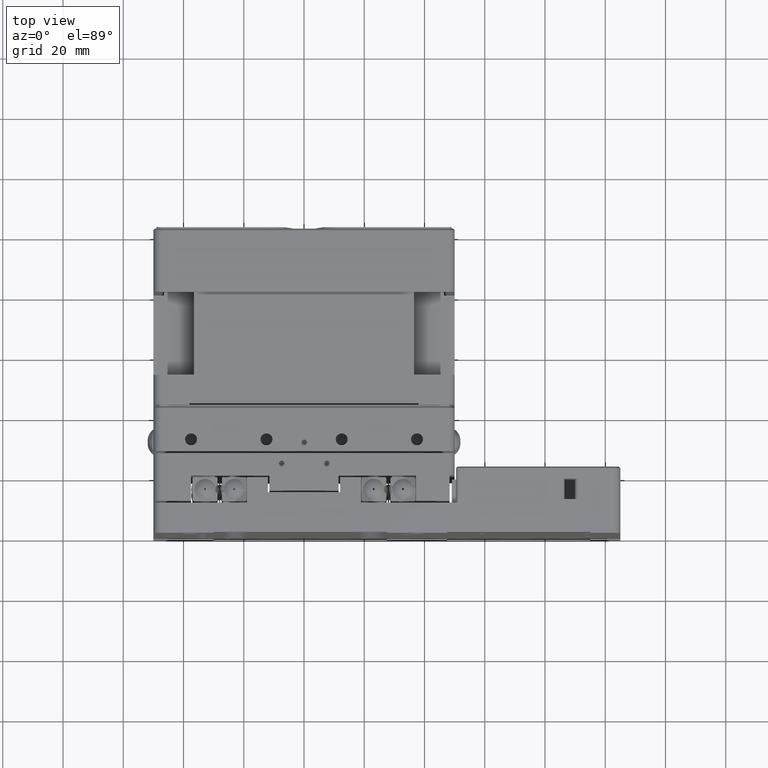
[diagram: clean part render]
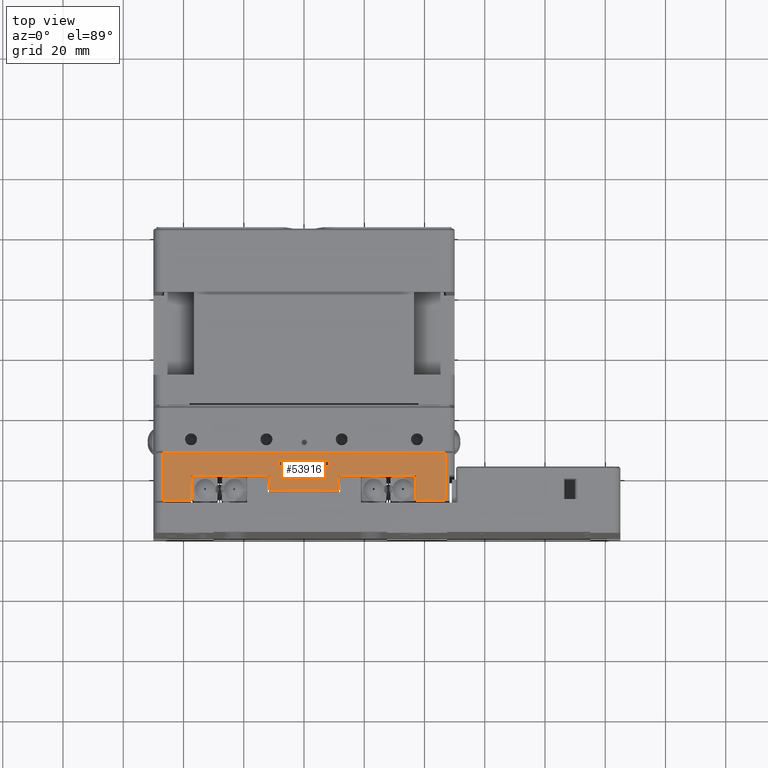
[diagram: same view with one face highlighted and labeled with its STEP entity id]
A machine part, top view. The second image highlights one B-rep face of the part: STEP entity #53916.
In plain terms, the highlighted planar face has unit normal (0, 0, -1).
Its self-contained STEP definition (entity closure, byte-faithful):
#619 = ORIENTED_EDGE ( 'NONE', *, *, #25718, .F. ) ;
#816 = VERTEX_POINT ( 'NONE', #40904 ) ;
#894 = EDGE_CURVE ( 'NONE', #53952, #4509, #24639, .T. ) ;
#2309 = CIRCLE ( 'NONE', #33561, 1.100000000121781341 ) ;
#4321 = DIRECTION ( 'NONE',  ( 0.000000000000000000, -0.000000000000000000, 1.000000000000000000 ) ) ;
#4325 = VERTEX_POINT ( 'NONE', #11305 ) ;
#4509 = VERTEX_POINT ( 'NONE', #48396 ) ;
#5405 = VECTOR ( 'NONE', #10004, 1000.000000000000000 ) ;
#5639 = LINE ( 'NONE', #31633, #19326 ) ;
#5657 = EDGE_CURVE ( 'NONE', #4325, #33756, #54941, .T. ) ;
#6447 = LINE ( 'NONE', #15646, #18310 ) ;
#6982 = VECTOR ( 'NONE', #24300, 1000.000000000000000 ) ;
#7530 = LINE ( 'NONE', #45305, #6982 ) ;
#8133 = LINE ( 'NONE', #15408, #11244 ) ;
#8569 = ORIENTED_EDGE ( 'NONE', *, *, #20628, .F. ) ;
#8671 = VERTEX_POINT ( 'NONE', #39506 ) ;
#8703 = ORIENTED_EDGE ( 'NONE', *, *, #9198, .F. ) ;
#8708 = VECTOR ( 'NONE', #54836, 1000.000000000000000 ) ;
#9198 = EDGE_CURVE ( 'NONE', #816, #52419, #6447, .T. ) ;
#9262 = CARTESIAN_POINT ( 'NONE',  ( 47.00000000000001421, 26.50000000000000355, 50.00000000000002842 ) ) ;
#9867 = CARTESIAN_POINT ( 'NONE',  ( -11.49999999999996803, 19.00000000000001066, 50.00000000000002842 ) ) ;
#10004 = DIRECTION ( 'NONE',  ( -0.000000000000000000, -1.000000000000000000, -0.000000000000000000 ) ) ;
#10099 = EDGE_CURVE ( 'NONE', #21065, #21065, #2309, .T. ) ;
#10277 = CARTESIAN_POINT ( 'NONE',  ( 47.00000000000001421, 10.60000000000000320, 50.00000000000002842 ) ) ;
#10937 = LINE ( 'NONE', #16483, #8708 ) ;
#11244 = VECTOR ( 'NONE', #32470, 1000.000000000000000 ) ;
#11305 = CARTESIAN_POINT ( 'NONE',  ( -11.49999999999996803, 19.00000000000001066, 50.00000000000002842 ) ) ;
#12022 = VERTEX_POINT ( 'NONE', #20406 ) ;
#12119 = DIRECTION ( 'NONE',  ( 0.000000000000000000, 1.000000000000000000, 0.000000000000000000 ) ) ;
#12581 = FACE_BOUND ( 'NONE', #54293, .T. ) ;
#13399 = DIRECTION ( 'NONE',  ( 0.000000000000000000, 0.000000000000000000, -1.000000000000000000 ) ) ;
#14033 = DIRECTION ( 'NONE',  ( -1.000000000000000000, 0.000000000000000000, -0.000000000000000000 ) ) ;
#14306 = DIRECTION ( 'NONE',  ( 0.000000000000000000, 1.000000000000000000, 0.000000000000000000 ) ) ;
#14579 = ORIENTED_EDGE ( 'NONE', *, *, #27661, .F. ) ;
#15408 = CARTESIAN_POINT ( 'NONE',  ( -49.99999999999996447, 14.00000000000001243, 50.00000000000002842 ) ) ;
#15646 = CARTESIAN_POINT ( 'NONE',  ( 11.50000000000003730, 10.60000000000000320, 50.00000000000002842 ) ) ;
#16483 = CARTESIAN_POINT ( 'NONE',  ( -46.99999999999995737, 10.60000000000000320, 50.00000000000002842 ) ) ;
#16529 = CARTESIAN_POINT ( 'NONE',  ( -49.99999999999996447, 10.60000000000000320, 50.00000000000002842 ) ) ;
#16873 = VERTEX_POINT ( 'NONE', #9262 ) ;
#16877 = CARTESIAN_POINT ( 'NONE',  ( -11.49999999999996803, 10.60000000000000320, 50.00000000000002842 ) ) ;
#17138 = LINE ( 'NONE', #38114, #44473 ) ;
#17411 = CARTESIAN_POINT ( 'NONE',  ( 7.500000000000041744, 23.10000000000000142, 49.99999999993864463 ) ) ;
#17953 = EDGE_CURVE ( 'NONE', #8671, #44566, #5639, .T. ) ;
#18310 = VECTOR ( 'NONE', #23200, 1000.000000000000000 ) ;
#18381 = LINE ( 'NONE', #10277, #5405 ) ;
#19262 = VECTOR ( 'NONE', #12119, 1000.000000000000000 ) ;
#19265 = EDGE_CURVE ( 'NONE', #52419, #39625, #8133, .T. ) ;
#19326 = VECTOR ( 'NONE', #14306, 1000.000000000000000 ) ;
#19515 = ORIENTED_EDGE ( 'NONE', *, *, #47908, .F. ) ;
#19602 = LINE ( 'NONE', #52370, #26032 ) ;
#19777 = CARTESIAN_POINT ( 'NONE',  ( 11.50000000000003730, 14.00000000000001243, 50.00000000000002842 ) ) ;
#20406 = CARTESIAN_POINT ( 'NONE',  ( 8.600000000008135359, 23.10000000000000142, 49.99999999993864463 ) ) ;
#20628 = EDGE_CURVE ( 'NONE', #39625, #4325, #50464, .T. ) ;
#21065 = VERTEX_POINT ( 'NONE', #54699 ) ;
#21345 = DIRECTION ( 'NONE',  ( 1.000000000000000000, 0.000000000000000000, 0.000000000000000000 ) ) ;
#23200 = DIRECTION ( 'NONE',  ( -0.000000000000000000, -1.000000000000000000, -0.000000000000000000 ) ) ;
#23378 = EDGE_CURVE ( 'NONE', #28415, #8671, #19602, .T. ) ;
#23735 = VECTOR ( 'NONE', #32493, 1000.000000000000000 ) ;
#24300 = DIRECTION ( 'NONE',  ( 2.065146995210484448E-16, -1.000000000000000000, -0.000000000000000000 ) ) ;
#24639 = LINE ( 'NONE', #16529, #23735 ) ;
#25162 = ORIENTED_EDGE ( 'NONE', *, *, #17953, .F. ) ;
#25414 = DIRECTION ( 'NONE',  ( -1.000000000000000000, 0.000000000000000000, -0.000000000000000000 ) ) ;
#25701 = FACE_BOUND ( 'NONE', #44446, .T. ) ;
#25718 = EDGE_CURVE ( 'NONE', #27578, #16873, #17138, .T. ) ;
#26032 = VECTOR ( 'NONE', #14033, 1000.000000000000000 ) ;
#26819 = ORIENTED_EDGE ( 'NONE', *, *, #26889, .F. ) ;
#26889 = EDGE_CURVE ( 'NONE', #12022, #12022, #28358, .T. ) ;
#27318 = CARTESIAN_POINT ( 'NONE',  ( -37.49999999999996447, 19.00000000000000355, 50.00000000000002842 ) ) ;
#27578 = VERTEX_POINT ( 'NONE', #37447 ) ;
#27661 = EDGE_CURVE ( 'NONE', #33756, #53952, #7530, .T. ) ;
#28358 = CIRCLE ( 'NONE', #50706, 1.100000000008094503 ) ;
#28415 = VERTEX_POINT ( 'NONE', #45922 ) ;
#29447 = ORIENTED_EDGE ( 'NONE', *, *, #5657, .F. ) ;
#29732 = DIRECTION ( 'NONE',  ( 1.000000000000000000, 0.000000000000000000, 0.000000000000000000 ) ) ;
#30189 = ORIENTED_EDGE ( 'NONE', *, *, #10099, .F. ) ;
#30449 = FACE_OUTER_BOUND ( 'NONE', #33892, .T. ) ;
#31633 = CARTESIAN_POINT ( 'NONE',  ( 37.10000000000003695, 10.60000000000000320, 50.00000000000002842 ) ) ;
#31827 = LINE ( 'NONE', #48920, #41453 ) ;
#32470 = DIRECTION ( 'NONE',  ( -1.000000000000000000, 0.000000000000000000, -0.000000000000000000 ) ) ;
#32493 = DIRECTION ( 'NONE',  ( -1.000000000000000000, 0.000000000000000000, -0.000000000000000000 ) ) ;
#33561 = AXIS2_PLACEMENT_3D ( 'NONE', #55243, #4321, #21345 ) ;
#33756 = VERTEX_POINT ( 'NONE', #27318 ) ;
#33892 = EDGE_LOOP ( 'NONE', ( #619, #41771, #40391, #14579, #29447, #8569, #49669, #8703, #19515, #25162, #42689, #55210 ) ) ;
#34188 = DIRECTION ( 'NONE',  ( 1.000000000000000000, -0.000000000000000000, 0.000000000000000000 ) ) ;
#34762 = DIRECTION ( 'NONE',  ( 0.000000000000000000, -0.000000000000000000, 1.000000000000000000 ) ) ;
#35827 = VECTOR ( 'NONE', #39769, 1000.000000000000000 ) ;
#37232 = AXIS2_PLACEMENT_3D ( 'NONE', #51452, #13399, #25414 ) ;
#37447 = CARTESIAN_POINT ( 'NONE',  ( -46.99999999999995737, 26.50000000000000355, 50.00000000000002842 ) ) ;
#38114 = CARTESIAN_POINT ( 'NONE',  ( -49.99999999999996447, 26.50000000000000355, 50.00000000000002842 ) ) ;
#39394 = CARTESIAN_POINT ( 'NONE',  ( -37.49999999999996447, 10.60000000000000320, 50.00000000000002842 ) ) ;
#39506 = CARTESIAN_POINT ( 'NONE',  ( 37.10000000000003695, 10.60000000000000142, 50.00000000000002842 ) ) ;
#39625 = VERTEX_POINT ( 'NONE', #47722 ) ;
#39769 = DIRECTION ( 'NONE',  ( -1.000000000000000000, -1.334402673828313586E-16, -0.000000000000000000 ) ) ;
#40391 = ORIENTED_EDGE ( 'NONE', *, *, #894, .F. ) ;
#40904 = CARTESIAN_POINT ( 'NONE',  ( 11.50000000000003730, 19.00000000000001066, 50.00000000000002842 ) ) ;
#41453 = VECTOR ( 'NONE', #44967, 1000.000000000000000 ) ;
#41771 = ORIENTED_EDGE ( 'NONE', *, *, #53757, .F. ) ;
#42689 = ORIENTED_EDGE ( 'NONE', *, *, #23378, .F. ) ;
#44446 = EDGE_LOOP ( 'NONE', ( #30189 ) ) ;
#44473 = VECTOR ( 'NONE', #34188, 1000.000000000000000 ) ;
#44566 = VERTEX_POINT ( 'NONE', #53213 ) ;
#44967 = DIRECTION ( 'NONE',  ( -1.000000000000000000, -1.334402673828313586E-16, -0.000000000000000000 ) ) ;
#45305 = CARTESIAN_POINT ( 'NONE',  ( -37.49999999999996447, 19.00000000000000355, 50.00000000000002842 ) ) ;
#45446 = EDGE_CURVE ( 'NONE', #16873, #28415, #18381, .T. ) ;
#45922 = CARTESIAN_POINT ( 'NONE',  ( 47.00000000000001421, 10.60000000000000320, 50.00000000000002842 ) ) ;
#47520 = PLANE ( 'NONE',  #37232 ) ;
#47722 = CARTESIAN_POINT ( 'NONE',  ( -11.49999999999996803, 14.00000000000001066, 50.00000000000002842 ) ) ;
#47908 = EDGE_CURVE ( 'NONE', #44566, #816, #31827, .T. ) ;
#48396 = CARTESIAN_POINT ( 'NONE',  ( -46.99999999999995737, 10.60000000000000320, 50.00000000000002842 ) ) ;
#48920 = CARTESIAN_POINT ( 'NONE',  ( -11.49999999999996803, 19.00000000000001066, 50.00000000000002842 ) ) ;
#49669 = ORIENTED_EDGE ( 'NONE', *, *, #19265, .F. ) ;
#50464 = LINE ( 'NONE', #16877, #19262 ) ;
#50706 = AXIS2_PLACEMENT_3D ( 'NONE', #17411, #34762, #29732 ) ;
#51452 = CARTESIAN_POINT ( 'NONE',  ( -49.99999999999996447, 10.60000000000000320, 50.00000000000002842 ) ) ;
#52370 = CARTESIAN_POINT ( 'NONE',  ( -49.99999999999996447, 10.60000000000000320, 50.00000000000002842 ) ) ;
#52419 = VERTEX_POINT ( 'NONE', #19777 ) ;
#53213 = CARTESIAN_POINT ( 'NONE',  ( 37.10000000000003695, 19.00000000000001776, 50.00000000000002842 ) ) ;
#53757 = EDGE_CURVE ( 'NONE', #4509, #27578, #10937, .T. ) ;
#53916 = ADVANCED_FACE ( 'NONE', ( #25701, #30449, #12581 ), #47520, .F. ) ;
#53952 = VERTEX_POINT ( 'NONE', #39394 ) ;
#54293 = EDGE_LOOP ( 'NONE', ( #26819 ) ) ;
#54699 = CARTESIAN_POINT ( 'NONE',  ( -6.399999999878176915, 23.10000000000000142, 50.00000000003868905 ) ) ;
#54836 = DIRECTION ( 'NONE',  ( 0.000000000000000000, 1.000000000000000000, 0.000000000000000000 ) ) ;
#54941 = LINE ( 'NONE', #9867, #35827 ) ;
#55210 = ORIENTED_EDGE ( 'NONE', *, *, #45446, .F. ) ;
#55243 = CARTESIAN_POINT ( 'NONE',  ( -7.499999999999958256, 23.10000000000000142, 50.00000000003868905 ) ) ;